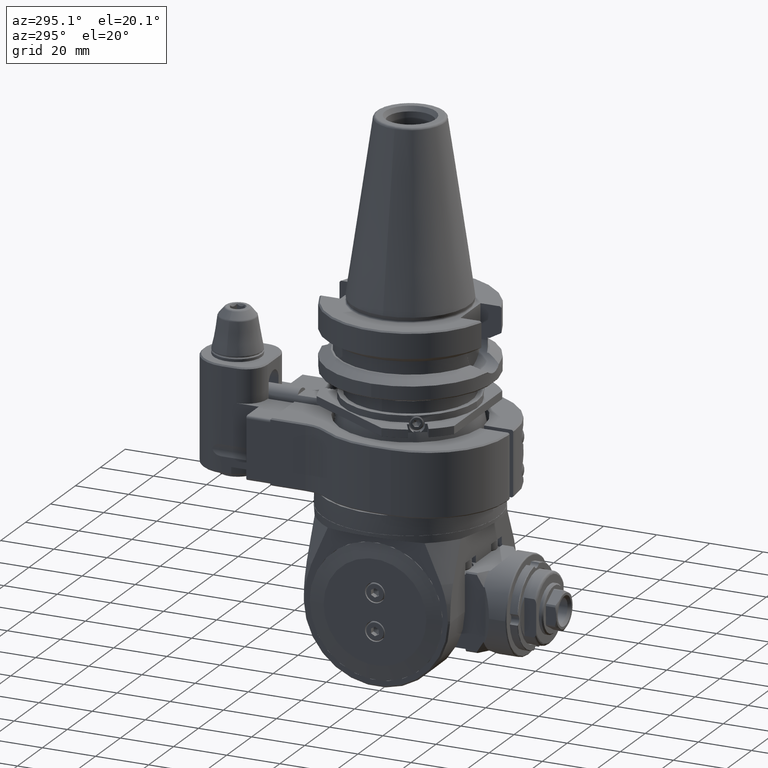
[diagram: clean part render]
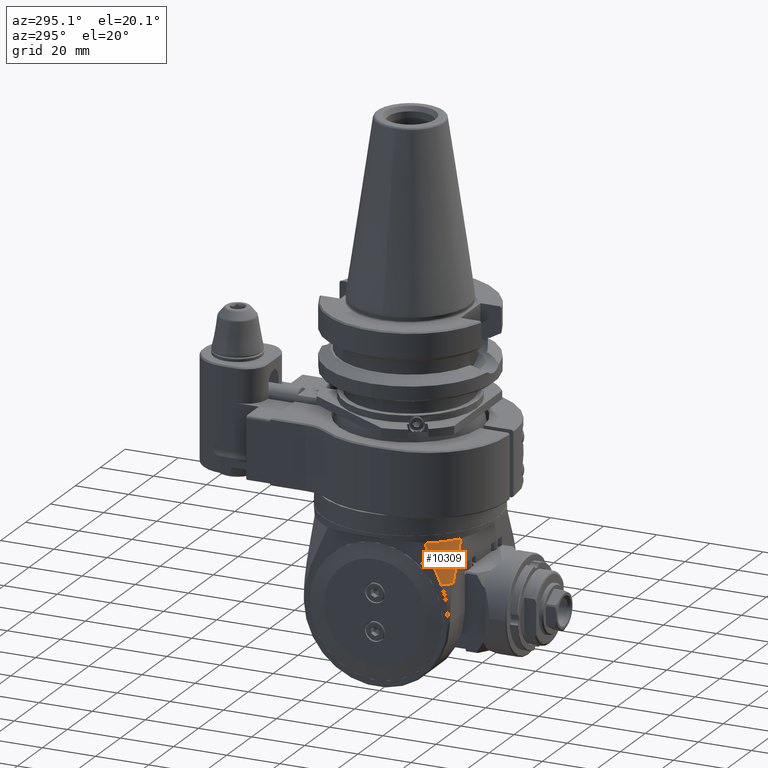
[diagram: same view with one face highlighted and labeled with its STEP entity id]
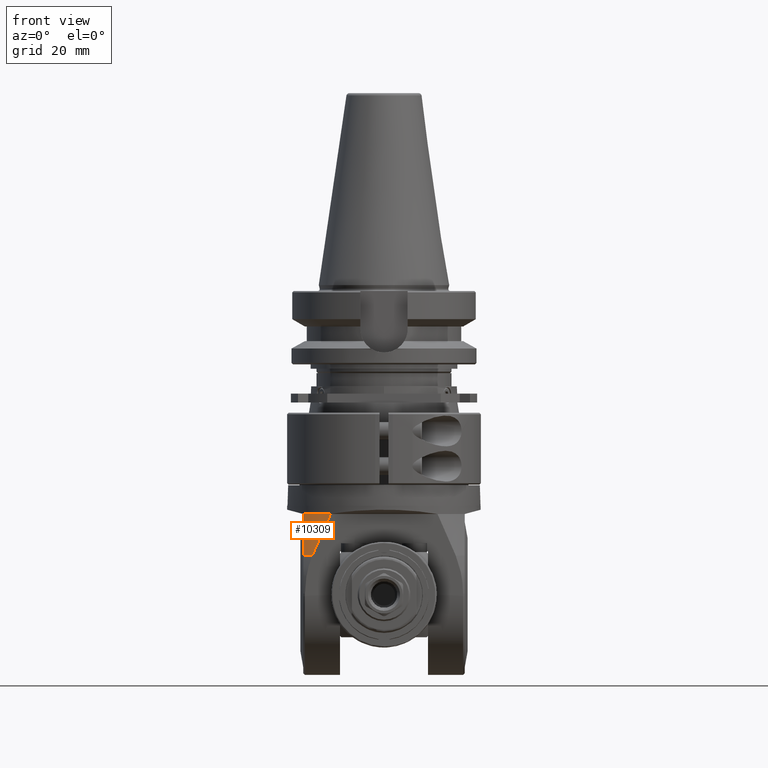
[diagram: same view with one face highlighted and labeled with its STEP entity id]
A machine part, auxiliary view. The second image highlights one B-rep face of the part: STEP entity #10309.
A second angle (front view) of the same face is appended — the face is thin or edge-on in the first view.
In plain terms, the highlighted conical surface has half-angle 15 deg.
Its self-contained STEP definition (entity closure, byte-faithful):
#136=(
BOUNDED_CURVE()
B_SPLINE_CURVE(2,(#17267,#17268,#17269),.UNSPECIFIED.,.F.,.F.)
B_SPLINE_CURVE_WITH_KNOTS((3,3),(-1.84316837921615,-0.141414757515402),
 .UNSPECIFIED.)
CURVE()
GEOMETRIC_REPRESENTATION_ITEM()
RATIONAL_B_SPLINE_CURVE((1.00685066769955,1.00800932349666,1.00118868371693))
REPRESENTATION_ITEM('')
);
#137=(
BOUNDED_CURVE()
B_SPLINE_CURVE(2,(#17312,#17313,#17314),.UNSPECIFIED.,.F.,.F.)
B_SPLINE_CURVE_WITH_KNOTS((3,3),(-2.13843015183133,-0.16330558134385),
 .UNSPECIFIED.)
CURVE()
GEOMETRIC_REPRESENTATION_ITEM()
RATIONAL_B_SPLINE_CURVE((1.01705775176549,1.01349702759246,1.00196197657113))
REPRESENTATION_ITEM('')
);
#354=CONICAL_SURFACE('',#11274,34.89814565723,0.261799387799149);
#2619=FACE_OUTER_BOUND('',#3268,.T.);
#3268=EDGE_LOOP('',(#8409,#8410,#8411,#8412));
#3809=CIRCLE('',#11220,33.);
#3842=CIRCLE('',#11275,36.79629131445);
#4593=VERTEX_POINT('',#17095);
#4595=VERTEX_POINT('',#17098);
#4631=VERTEX_POINT('',#17266);
#4635=VERTEX_POINT('',#17303);
#5895=EDGE_CURVE('',#4595,#4593,#3809,.T.);
#5948=EDGE_CURVE('',#4631,#4595,#136,.T.);
#5956=EDGE_CURVE('',#4635,#4593,#137,.T.);
#6013=EDGE_CURVE('',#4631,#4635,#3842,.T.);
#8409=ORIENTED_EDGE('',*,*,#6013,.F.);
#8410=ORIENTED_EDGE('',*,*,#5948,.T.);
#8411=ORIENTED_EDGE('',*,*,#5895,.T.);
#8412=ORIENTED_EDGE('',*,*,#5956,.F.);
#10309=ADVANCED_FACE('',(#2619),#354,.T.);
#11220=AXIS2_PLACEMENT_3D('',#17099,#13431,#13432);
#11274=AXIS2_PLACEMENT_3D('',#17448,#13605,#13606);
#11275=AXIS2_PLACEMENT_3D('',#17449,#13607,#13608);
#13431=DIRECTION('center_axis',(0.,-1.,0.));
#13432=DIRECTION('ref_axis',(0.833333333333308,0.,0.552770798392605));
#13605=DIRECTION('center_axis',(0.,-1.,0.));
#13606=DIRECTION('ref_axis',(1.,0.,0.));
#13607=DIRECTION('center_axis',(0.,-1.,0.));
#13608=DIRECTION('ref_axis',(0.747357927052783,0.,0.664421649911685));
#17095=CARTESIAN_POINT('',(18.2414363469502,-78.,27.4999999999998));
#17098=CARTESIAN_POINT('',(27.5000000000002,-78.,18.2414363469498));
#17099=CARTESIAN_POINT('Origin',(1.847411112976E-13,-78.,-2.390490598806E-13));
#17266=CARTESIAN_POINT('',(27.5000000000002,-92.16795206587,24.4482525857798));
#17267=CARTESIAN_POINT('Ctrl Pts',(27.5000000000002,-92.1679520660357,24.4482525858494));
#17268=CARTESIAN_POINT('Ctrl Pts',(27.5000000000002,-84.0540098145488,21.1760469405274));
#17269=CARTESIAN_POINT('Ctrl Pts',(27.5000000000002,-77.9999999999965,18.2414363469569));
#17303=CARTESIAN_POINT('',(24.4482525855002,-92.16795206526,27.5000000000298));
#17312=CARTESIAN_POINT('Ctrl Pts',(24.4482525854908,-92.1679520651453,27.4999999999998));
#17313=CARTESIAN_POINT('Ctrl Pts',(21.176046940368,-84.0540098142192,27.4999999999998));
#17314=CARTESIAN_POINT('Ctrl Pts',(18.2414363469574,-77.9999999999966,27.4999999999998));
#17448=CARTESIAN_POINT('Origin',(1.847411112976E-13,-85.08397603294,-2.390490598806E-13));
#17449=CARTESIAN_POINT('Origin',(1.847411112976E-13,-92.16795206587,-2.390490598806E-13));